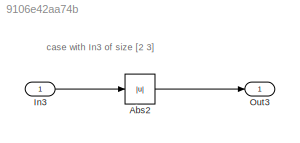
MODEL slx_9106e42aa74b
KIND model
CONFIG AbsTol = auto
CONFIG EnableMultiTasking = on
CONFIG FixedStep = 0.200000
CONFIG MaxStep = auto
CONFIG MinStep = auto
CONFIG RelTol = 1e-3
CONFIG SampleTimeConstraint = Unconstrained
CONFIG Solver = ode3
CONFIG SolverName = ode3
CONFIG StartTime = 0.0
CONFIG StopTime = 10.0
BLOCK [Abs] Abs2
  SaturateOnIntegerOverflow = off
BLOCK [Inport] In3
  IconDisplay = Port number
  PortDimensions = [2 3]
BLOCK [Outport] Out3
  IconDisplay = Port number
ANNOTATION (root): case with In3 of size [2 3]
LINE Abs2:1 -> Out3:1
LINE In3:1 -> Abs2:1
